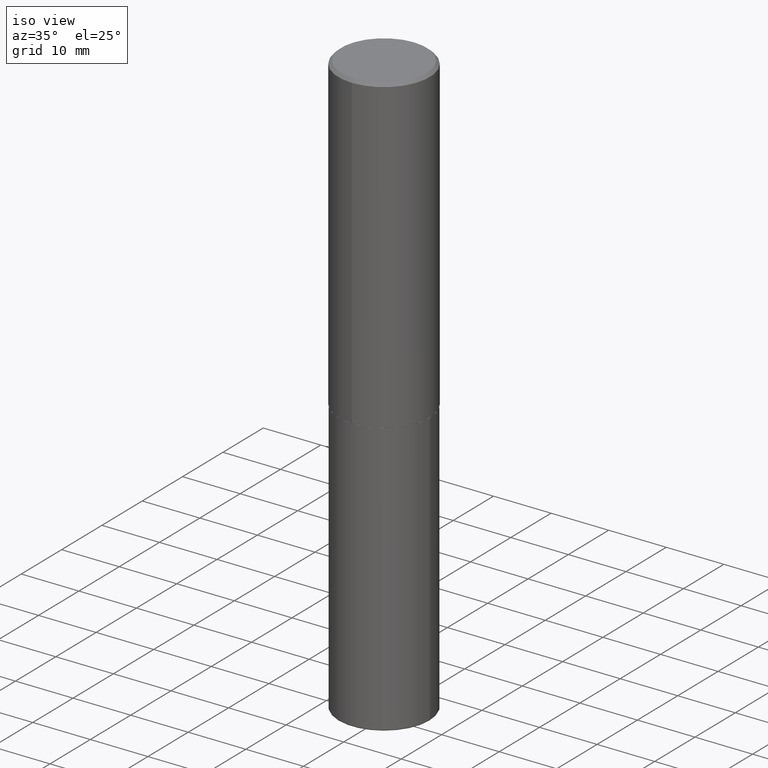
[diagram: clean part render]
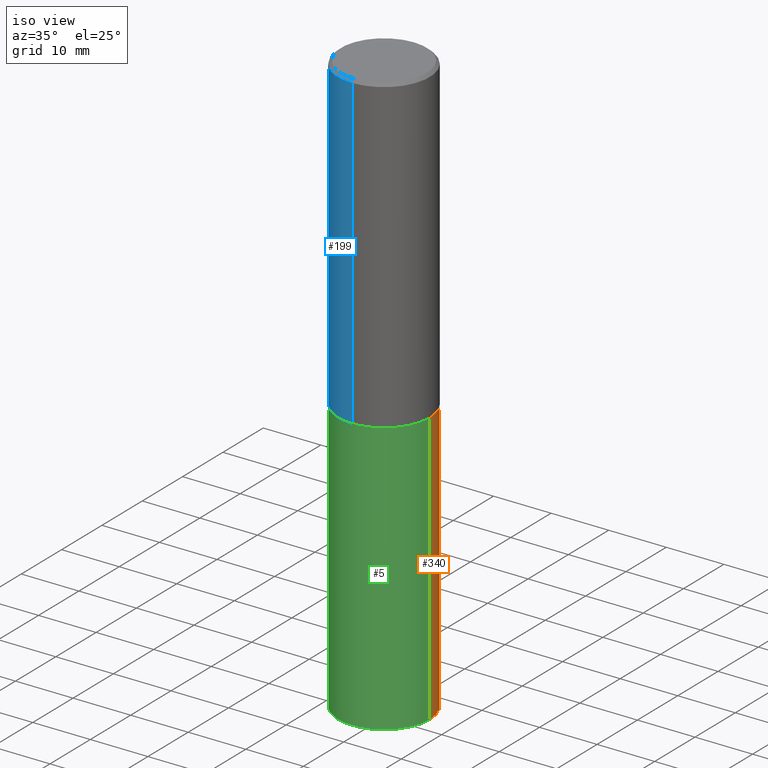
[diagram: same view with three faces highlighted in distinct colors, each labeled with its STEP entity id]
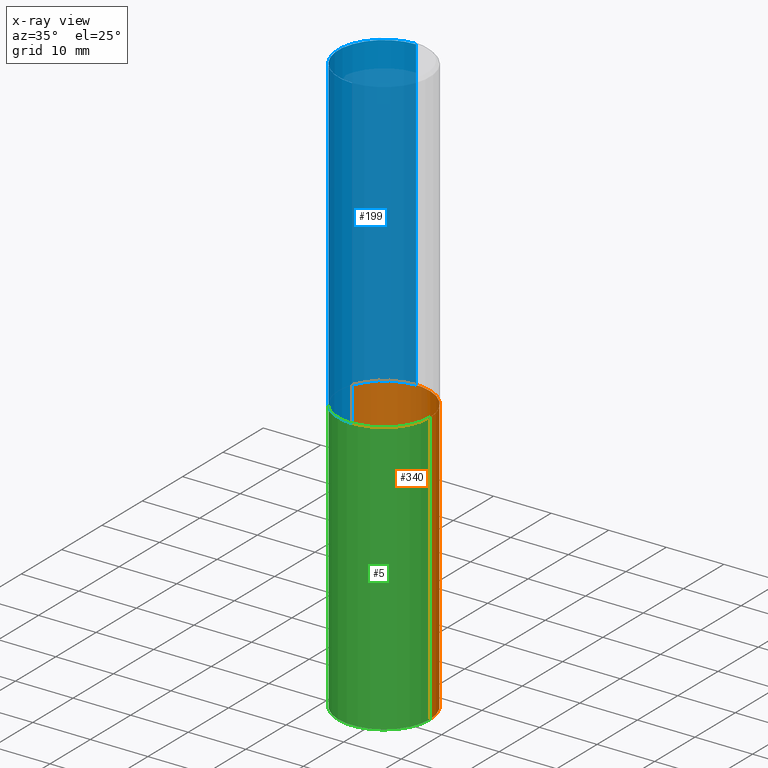
[diagram: x-ray of the same camera — body ghosted, the three highlighted faces saturated]
A machine part, iso view with three faces highlighted in distinct colors.
The next image is the same camera in x-ray (body ghosted, the three faces saturated) — at least one of them is partly hidden behind the body in this view.
Their STEP definitions:

[orange] entity #340 — the highlighted cylindrical surface (partial cylindrical patch) has radius 7.9375 mm, axis along (-0, 0, 1).
#7 = DIRECTION ( 'NONE',  ( 1.000000000000000000, -6.982962677686265133E-15, 0.000000000000000000 ) ) ;
#15 = ORIENTED_EDGE ( 'NONE', *, *, #160, .F. ) ;
#23 = DIRECTION ( 'NONE',  ( -2.445468806185136597E-29, 3.491481338843145583E-15, 1.000000000000000000 ) ) ;
#26 = CARTESIAN_POINT ( 'NONE',  ( 0.3125000000000000000, -2.182175836776958347E-15, 1.523805242436230075E-29 ) ) ;
#52 = CARTESIAN_POINT ( 'NONE',  ( 9.757420536678694842E-29, -1.393101054198414910E-14, -3.989999999999999769 ) ) ;
#53 = EDGE_CURVE ( 'NONE', #288, #276, #284, .T. ) ;
#68 = DIRECTION ( 'NONE',  ( -2.445468806185136597E-29, 3.491481338843145583E-15, 1.000000000000000000 ) ) ;
#85 = AXIS2_PLACEMENT_3D ( 'NONE', #52, #23, #142 ) ;
#86 = AXIS2_PLACEMENT_3D ( 'NONE', #200, #68, #400 ) ;
#89 = VERTEX_POINT ( 'NONE', #146 ) ;
#93 = CARTESIAN_POINT ( 'NONE',  ( -0.3125000000000000000, -1.171056449273383602E-14, -3.989999999999999769 ) ) ;
#96 = LINE ( 'NONE', #238, #234 ) ;
#104 = VERTEX_POINT ( 'NONE', #295 ) ;
#119 = DIRECTION ( 'NONE',  ( -2.445468806185136877E-29, 3.491481338843145188E-15, 1.000000000000000000 ) ) ;
#137 = ORIENTED_EDGE ( 'NONE', *, *, #53, .T. ) ;
#142 = DIRECTION ( 'NONE',  ( 1.000000000000000000, -6.982962677686268288E-15, 0.000000000000000000 ) ) ;
#146 = CARTESIAN_POINT ( 'NONE',  ( -0.3125000000000000000, -8.454758144262601705E-15, -2.124999999999999556 ) ) ;
#160 = EDGE_CURVE ( 'NONE', #288, #104, #390, .T. ) ;
#173 = AXIS2_PLACEMENT_3D ( 'NONE', #233, #304, #7 ) ;
#174 = ORIENTED_EDGE ( 'NONE', *, *, #277, .F. ) ;
#176 = EDGE_LOOP ( 'NONE', ( #137, #377, #174, #15 ) ) ;
#200 = CARTESIAN_POINT ( 'NONE',  ( 0.000000000000000000, 0.000000000000000000, 0.000000000000000000 ) ) ;
#233 = CARTESIAN_POINT ( 'NONE',  ( 5.196621213143414147E-29, -7.419397845041682046E-15, -2.124999999999999556 ) ) ;
#234 = VECTOR ( 'NONE', #336, 39.37007874015748143 ) ;
#238 = CARTESIAN_POINT ( 'NONE',  ( -0.3125000000000000000, 2.220446049250313081E-15, -1.537167215704658232E-29 ) ) ;
#269 = CARTESIAN_POINT ( 'NONE',  ( 0.3125000000000000000, -1.611318637876110745E-14, -3.989999999999999769 ) ) ;
#276 = VERTEX_POINT ( 'NONE', #93 ) ;
#277 = EDGE_CURVE ( 'NONE', #104, #89, #399, .T. ) ;
#284 = CIRCLE ( 'NONE', #85, 0.3125000000000000555 ) ;
#288 = VERTEX_POINT ( 'NONE', #269 ) ;
#295 = CARTESIAN_POINT ( 'NONE',  ( 0.3125000000000000000, -9.601573681818640393E-15, -2.124999999999999556 ) ) ;
#297 = CYLINDRICAL_SURFACE ( 'NONE', #86, 0.3125000000000000000 ) ;
#304 = DIRECTION ( 'NONE',  ( -2.445468806185136597E-29, 3.491481338843145583E-15, 1.000000000000000000 ) ) ;
#328 = VECTOR ( 'NONE', #119, 39.37007874015748143 ) ;
#336 = DIRECTION ( 'NONE',  ( -2.445468806185136877E-29, 3.491481338843145188E-15, 1.000000000000000000 ) ) ;
#338 = FACE_OUTER_BOUND ( 'NONE', #176, .T. ) ;
#340 = ADVANCED_FACE ( 'NONE', ( #338 ), #297, .T. ) ;
#377 = ORIENTED_EDGE ( 'NONE', *, *, #385, .T. ) ;
#385 = EDGE_CURVE ( 'NONE', #276, #89, #96, .T. ) ;
#390 = LINE ( 'NONE', #26, #328 ) ;
#399 = CIRCLE ( 'NONE', #173, 0.3125000000000000000 ) ;
#400 = DIRECTION ( 'NONE',  ( 1.000000000000000000, -6.982962677686266711E-15, 4.876176775795936353E-29 ) ) ;

[blue] entity #199 — the highlighted cylindrical surface (partial cylindrical patch) has radius 7.9375 mm, axis along (-0, 0, 1).
#12 = CARTESIAN_POINT ( 'NONE',  ( -2.143905624303602824E-15, -0.3125000000000000555, -0.01999999999999897693 ) ) ;
#25 = CARTESIAN_POINT ( 'NONE',  ( 2.182175836776958741E-15, 0.3124999999999999445, -0.02000000000000116268 ) ) ;
#39 = LINE ( 'NONE', #194, #415 ) ;
#55 = ORIENTED_EDGE ( 'NONE', *, *, #372, .T. ) ;
#71 = LINE ( 'NONE', #401, #115 ) ;
#80 = EDGE_CURVE ( 'NONE', #102, #252, #124, .T. ) ;
#102 = VERTEX_POINT ( 'NONE', #291 ) ;
#107 = VERTEX_POINT ( 'NONE', #25 ) ;
#110 = ORIENTED_EDGE ( 'NONE', *, *, #195, .F. ) ;
#115 = VECTOR ( 'NONE', #198, 39.37007874015748143 ) ;
#124 = CIRCLE ( 'NONE', #180, 0.3125000000000002776 ) ;
#132 = CARTESIAN_POINT ( 'NONE',  ( 4.889704863452922148E-31, -6.984728044299695791E-17, -0.02000000000000006981 ) ) ;
#159 = CARTESIAN_POINT ( 'NONE',  ( 0.000000000000000000, 0.000000000000000000, 0.000000000000000000 ) ) ;
#161 = ORIENTED_EDGE ( 'NONE', *, *, #80, .T. ) ;
#166 = CYLINDRICAL_SURFACE ( 'NONE', #411, 0.3125000000000001665 ) ;
#180 = AXIS2_PLACEMENT_3D ( 'NONE', #189, #186, #253 ) ;
#185 = VERTEX_POINT ( 'NONE', #12 ) ;
#186 = DIRECTION ( 'NONE',  ( -2.444852431726452894E-29, 3.492364022149836358E-15, 1.000000000000000000 ) ) ;
#189 = CARTESIAN_POINT ( 'NONE',  ( 5.192866564986985411E-29, -7.417781183046251262E-15, -2.123999999999999666 ) ) ;
#194 = CARTESIAN_POINT ( 'NONE',  ( 2.220446049250313475E-15, 0.3125000000000001665, -1.091363756921824478E-15 ) ) ;
#195 = EDGE_CURVE ( 'NONE', #107, #185, #290, .T. ) ;
#198 = DIRECTION ( 'NONE',  ( -2.444852431726452614E-29, 3.492364022149836358E-15, 1.000000000000000000 ) ) ;
#199 = ADVANCED_FACE ( 'NONE', ( #339 ), #166, .T. ) ;
#218 = CARTESIAN_POINT ( 'NONE',  ( -2.182175836776908254E-15, -0.3125000000000077161, -2.123999999999998334 ) ) ;
#240 = DIRECTION ( 'NONE',  ( -6.982962677686265133E-15, -1.000000000000000000, 3.492364022149836358E-15 ) ) ;
#243 = EDGE_LOOP ( 'NONE', ( #403, #161, #55, #110 ) ) ;
#252 = VERTEX_POINT ( 'NONE', #218 ) ;
#253 = DIRECTION ( 'NONE',  ( -6.982962677686265922E-15, -1.000000000000000000, 3.496765431890253764E-15 ) ) ;
#272 = DIRECTION ( 'NONE',  ( -2.444852431726452614E-29, 3.492364022149836358E-15, 1.000000000000000000 ) ) ;
#273 = DIRECTION ( 'NONE',  ( -2.444852431726452894E-29, 3.492364022149836358E-15, 1.000000000000000000 ) ) ;
#290 = CIRCLE ( 'NONE', #360, 0.3125000000000000000 ) ;
#291 = CARTESIAN_POINT ( 'NONE',  ( 2.220446049250340297E-15, 0.3124999999999928391, -2.124000000000000554 ) ) ;
#305 = DIRECTION ( 'NONE',  ( -2.444852431726452894E-29, 3.492364022149836358E-15, 1.000000000000000000 ) ) ;
#339 = FACE_OUTER_BOUND ( 'NONE', #243, .T. ) ;
#360 = AXIS2_PLACEMENT_3D ( 'NONE', #132, #273, #402 ) ;
#370 = EDGE_CURVE ( 'NONE', #102, #107, #39, .T. ) ;
#372 = EDGE_CURVE ( 'NONE', #252, #185, #71, .T. ) ;
#401 = CARTESIAN_POINT ( 'NONE',  ( -2.182175836776959136E-15, -0.3125000000000001665, 1.091363756921824478E-15 ) ) ;
#402 = DIRECTION ( 'NONE',  ( -6.982962677686265133E-15, -1.000000000000000000, 3.496765431890256920E-15 ) ) ;
#403 = ORIENTED_EDGE ( 'NONE', *, *, #370, .F. ) ;
#411 = AXIS2_PLACEMENT_3D ( 'NONE', #159, #305, #240 ) ;
#415 = VECTOR ( 'NONE', #272, 39.37007874015748143 ) ;

[green] entity #5 — the highlighted cylindrical surface (partial cylindrical patch) has radius 7.9375 mm, axis along (-0, 0, 1).
#5 = ADVANCED_FACE ( 'NONE', ( #17 ), #206, .T. ) ;
#17 = FACE_OUTER_BOUND ( 'NONE', #101, .T. ) ;
#26 = CARTESIAN_POINT ( 'NONE',  ( 0.3125000000000000000, -2.182175836776958347E-15, 1.523805242436230075E-29 ) ) ;
#37 = DIRECTION ( 'NONE',  ( -2.445468806185136597E-29, 3.491481338843145583E-15, 1.000000000000000000 ) ) ;
#44 = DIRECTION ( 'NONE',  ( 1.000000000000000000, -6.982962677686268288E-15, 0.000000000000000000 ) ) ;
#49 = DIRECTION ( 'NONE',  ( -2.445468806185136597E-29, 3.491481338843145583E-15, 1.000000000000000000 ) ) ;
#66 = ORIENTED_EDGE ( 'NONE', *, *, #224, .F. ) ;
#69 = AXIS2_PLACEMENT_3D ( 'NONE', #120, #326, #83 ) ;
#83 = DIRECTION ( 'NONE',  ( 1.000000000000000000, -6.982962677686265133E-15, 0.000000000000000000 ) ) ;
#89 = VERTEX_POINT ( 'NONE', #146 ) ;
#93 = CARTESIAN_POINT ( 'NONE',  ( -0.3125000000000000000, -1.171056449273383602E-14, -3.989999999999999769 ) ) ;
#96 = LINE ( 'NONE', #238, #234 ) ;
#101 = EDGE_LOOP ( 'NONE', ( #216, #334, #245, #66 ) ) ;
#104 = VERTEX_POINT ( 'NONE', #295 ) ;
#119 = DIRECTION ( 'NONE',  ( -2.445468806185136877E-29, 3.491481338843145188E-15, 1.000000000000000000 ) ) ;
#120 = CARTESIAN_POINT ( 'NONE',  ( 5.196621213143414147E-29, -7.419397845041682046E-15, -2.124999999999999556 ) ) ;
#146 = CARTESIAN_POINT ( 'NONE',  ( -0.3125000000000000000, -8.454758144262601705E-15, -2.124999999999999556 ) ) ;
#160 = EDGE_CURVE ( 'NONE', #288, #104, #390, .T. ) ;
#163 = EDGE_CURVE ( 'NONE', #276, #288, #382, .T. ) ;
#175 = DIRECTION ( 'NONE',  ( 1.000000000000000000, -6.982962677686266711E-15, 4.876176775795936353E-29 ) ) ;
#182 = CARTESIAN_POINT ( 'NONE',  ( 0.000000000000000000, 0.000000000000000000, 0.000000000000000000 ) ) ;
#188 = CIRCLE ( 'NONE', #69, 0.3125000000000000000 ) ;
#206 = CYLINDRICAL_SURFACE ( 'NONE', #381, 0.3125000000000000000 ) ;
#216 = ORIENTED_EDGE ( 'NONE', *, *, #385, .F. ) ;
#224 = EDGE_CURVE ( 'NONE', #89, #104, #188, .T. ) ;
#234 = VECTOR ( 'NONE', #336, 39.37007874015748143 ) ;
#238 = CARTESIAN_POINT ( 'NONE',  ( -0.3125000000000000000, 2.220446049250313081E-15, -1.537167215704658232E-29 ) ) ;
#245 = ORIENTED_EDGE ( 'NONE', *, *, #160, .T. ) ;
#263 = CARTESIAN_POINT ( 'NONE',  ( 9.757420536678694842E-29, -1.393101054198414910E-14, -3.989999999999999769 ) ) ;
#269 = CARTESIAN_POINT ( 'NONE',  ( 0.3125000000000000000, -1.611318637876110745E-14, -3.989999999999999769 ) ) ;
#276 = VERTEX_POINT ( 'NONE', #93 ) ;
#288 = VERTEX_POINT ( 'NONE', #269 ) ;
#295 = CARTESIAN_POINT ( 'NONE',  ( 0.3125000000000000000, -9.601573681818640393E-15, -2.124999999999999556 ) ) ;
#326 = DIRECTION ( 'NONE',  ( -2.445468806185136597E-29, 3.491481338843145583E-15, 1.000000000000000000 ) ) ;
#328 = VECTOR ( 'NONE', #119, 39.37007874015748143 ) ;
#334 = ORIENTED_EDGE ( 'NONE', *, *, #163, .T. ) ;
#336 = DIRECTION ( 'NONE',  ( -2.445468806185136877E-29, 3.491481338843145188E-15, 1.000000000000000000 ) ) ;
#348 = AXIS2_PLACEMENT_3D ( 'NONE', #263, #37, #44 ) ;
#381 = AXIS2_PLACEMENT_3D ( 'NONE', #182, #49, #175 ) ;
#382 = CIRCLE ( 'NONE', #348, 0.3125000000000000555 ) ;
#385 = EDGE_CURVE ( 'NONE', #276, #89, #96, .T. ) ;
#390 = LINE ( 'NONE', #26, #328 ) ;